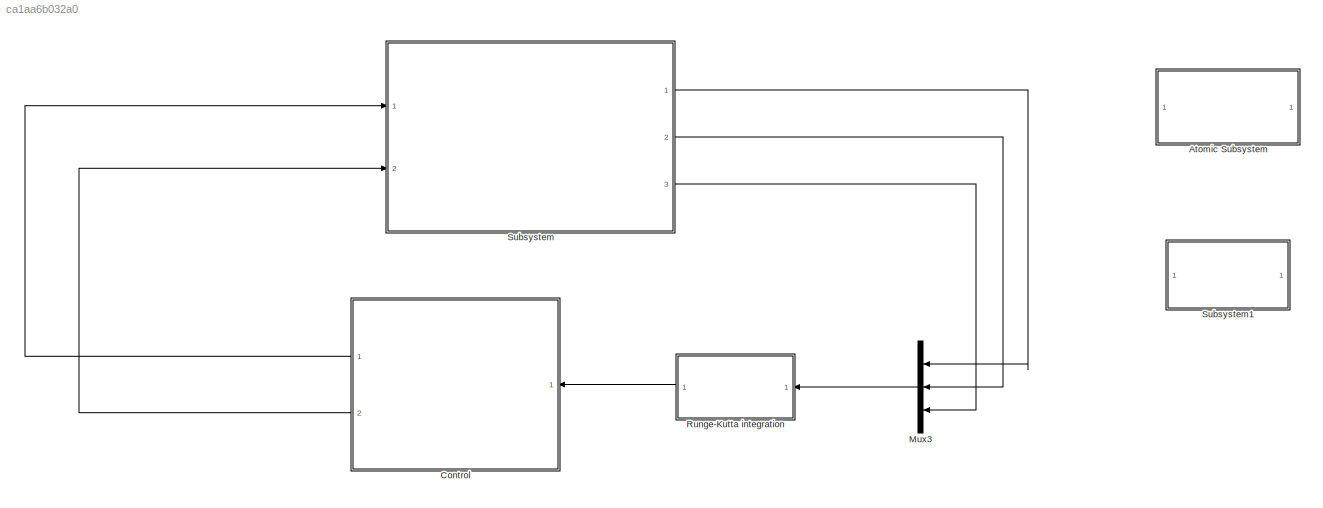
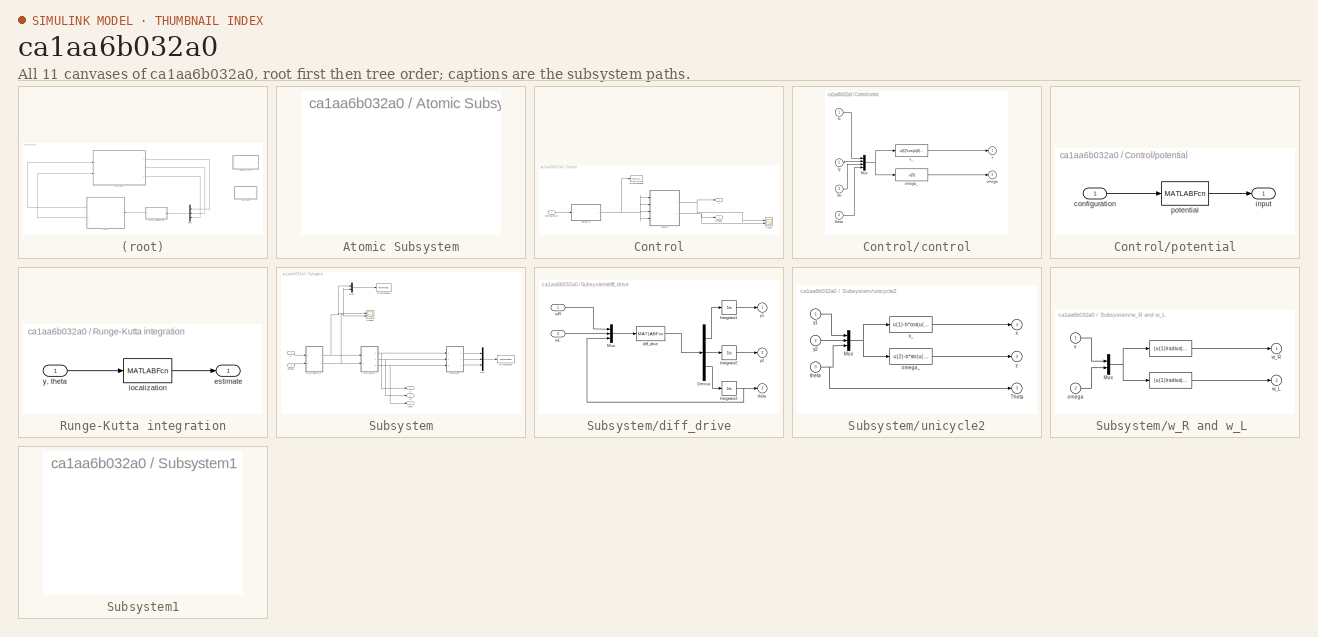
[diagram: thumbnail index - all 11 canvases of the model, root first then tree order]
MODEL slx_ca1aa6b032a0
KIND model
CONFIG AbsTol = auto
CONFIG EnableMultiTasking = on
CONFIG FixedStep = auto
CONFIG MaxStep = 0.01
CONFIG MinStep = auto
CONFIG RelTol = 1e-3
CONFIG SampleTimeConstraint = Unconstrained
CONFIG Solver = ode45
CONFIG SolverName = ode45
CONFIG StartTime = 0.0
CONFIG StopTime = T
BLOCK [SubSystem] Atomic Subsystem
  OpenFcn = init
  Ports = []
  RequestExecContextInheritance = off
  TreatAsAtomicUnit = on
BLOCK [SubSystem] Control
  Ports = [1, 2]
  RequestExecContextInheritance = off
BLOCK [Scope] Control/Scope
  Floating = off
  NumInputPorts = 2
  Ports = [2]
  ScopeSpecificationString = Simulink.scopes.TimeScopeBlockCfg('CurrentConfiguration', extmgr.ConfigurationSet(extmgr.Configuration('Core','General UI',true),extmgr.Configuration('Core','Source UI',true),extmgr.Configuration('Sources','WiredSimulink',true,'DataLoggingVariableName','ScopeData1'),extmgr.Configuration('Visuals','Time Domain',true,'SerializedDisplays',{struct('MinYLimReal','-3.32655','MaxYLimReal','6.4655','YLabe...<+1405ch>
BLOCK [ToWorkspace] Control/To Workspace2
  MaxDataPoints = inf
  Ports = [1]
  SampleTime = -1
  SaveFormat = Structure With Time
  VariableName = inputs
BLOCK [Inport] Control/configuration
  IconDisplay = Port number
BLOCK [SubSystem] Control/control
  Ports = [4, 2]
  RequestExecContextInheritance = off
BLOCK [Mux] Control/control/Mux
  DisplayOption = bar
  Ports = [4, 1]
BLOCK [Inport] Control/control/fth
  IconDisplay = Port number
  Port = 3
BLOCK [Inport] Control/control/fx
  IconDisplay = Port number
BLOCK [Inport] Control/control/fy
  IconDisplay = Port number
  Port = 2
BLOCK [Outport] Control/control/omega
  IconDisplay = Port number
  Port = 2
  VectorParamsAs1DForOutWhenUnconnected = off
BLOCK [Fcn] Control/control/omega_
  Expr = u(3)
BLOCK [Inport] Control/control/theta
  IconDisplay = Port number
  Port = 4
BLOCK [Outport] Control/control/v
  IconDisplay = Port number
  VectorParamsAs1DForOutWhenUnconnected = off
BLOCK [Fcn] Control/control/v_
  Expr = u(1)*cos(u(4))+u(2)*sin(u(4))
BLOCK [Outport] Control/omega
  IconDisplay = Port number
  Port = 2
BLOCK [SubSystem] Control/potential
  Ports = [1, 1]
  RequestExecContextInheritance = off
BLOCK [Inport] Control/potential/configuration
  IconDisplay = Port number
BLOCK [Outport] Control/potential/input
  IconDisplay = Port number
  VectorParamsAs1DForOutWhenUnconnected = off
BLOCK [MATLABFcn] Control/potential/potential
  Description = cartesian regulator
  MATLABFcn = potential(u)
  Output1D = off
  Ports = [1, 1]
  Tag = {'prova'}
BLOCK [Outport] Control/v
  IconDisplay = Port number
BLOCK [Mux] Mux3
  DisplayOption = bar
  Inputs = 3
  Ports = [3, 1]
BLOCK [SubSystem] Runge-Kutta integration
  Ports = [1, 1]
  RequestExecContextInheritance = off
BLOCK [Outport] Runge-Kutta integration/estimate 
  IconDisplay = Port number
  VectorParamsAs1DForOutWhenUnconnected = off
BLOCK [MATLABFcn] Runge-Kutta integration/localization
  Description = cartesian regulator
  MATLABFcn = localization(u)
  Output1D = off
  Ports = [1, 1]
  Tag = {'prova'}
BLOCK [Inport] Runge-Kutta integration/y, theta
  IconDisplay = Port number
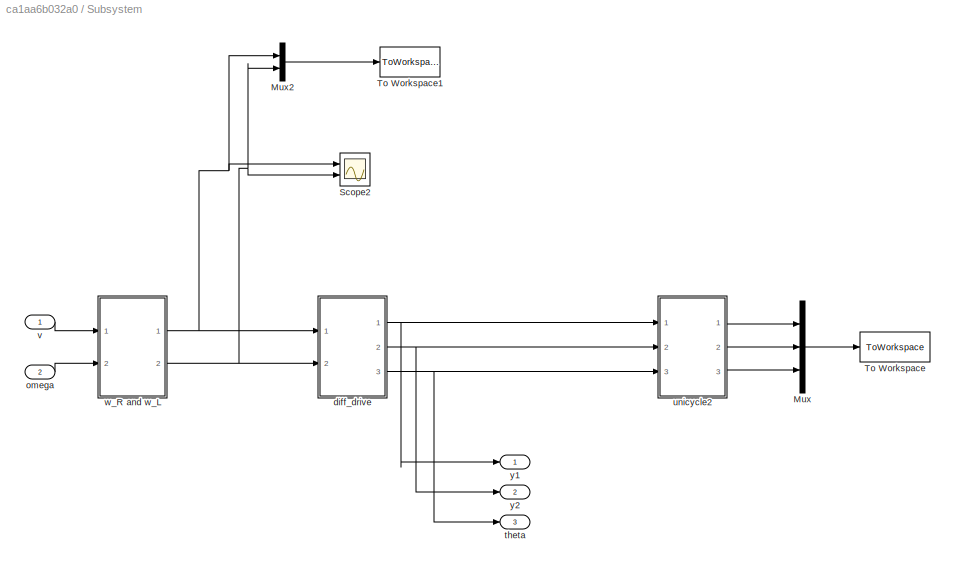
BLOCK [SubSystem] Subsystem
  Ports = [2, 3]
  RequestExecContextInheritance = off
BLOCK [Mux] Subsystem/Mux
  DisplayOption = bar
  Inputs = 3
  Ports = [3, 1]
BLOCK [Mux] Subsystem/Mux2
  DisplayOption = bar
  Inputs = 2
  Ports = [2, 1]
BLOCK [Scope] Subsystem/Scope2
  Floating = off
  NumInputPorts = 2
  Ports = [2]
  ScopeSpecificationString = Simulink.scopes.TimeScopeBlockCfg('CurrentConfiguration', extmgr.ConfigurationSet(extmgr.Configuration('Core','General UI',true),extmgr.Configuration('Core','Source UI',true),extmgr.Configuration('Sources','WiredSimulink',true,'DataLoggingVariableName','ScopeData1'),extmgr.Configuration('Visuals','Time Domain',true,'SerializedDisplays',{struct('MinYLimReal','0.73437','MaxYLimReal','6.70702','YLabe...<+1462ch>
BLOCK [ToWorkspace] Subsystem/To Workspace
  MaxDataPoints = inf
  Ports = [1]
  SampleTime = -1
  SaveFormat = Structure With Time
  VariableName = configuration
BLOCK [ToWorkspace] Subsystem/To Workspace1
  FixptAsFi = on
  MaxDataPoints = inf
  Ports = [1]
  SampleTime = -1
  SaveFormat = Structure With Time
  VariableName = omegaRL
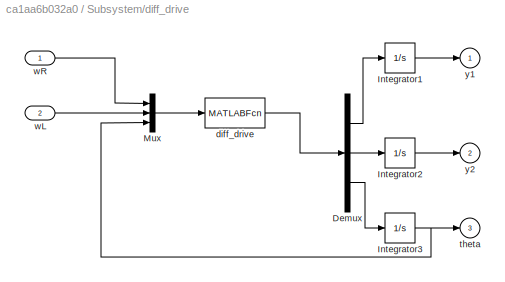
BLOCK [SubSystem] Subsystem/diff_drive
  Ports = [2, 3]
  RequestExecContextInheritance = off
BLOCK [Demux] Subsystem/diff_drive/Demux
  DisplayOption = bar
  Outputs = 3
  Ports = [1, 3]
BLOCK [Integrator] Subsystem/diff_drive/Integrator1
  InitialCondition = x_0+b*cos(theta_0)
  Ports = [1, 1]
BLOCK [Integrator] Subsystem/diff_drive/Integrator2
  InitialCondition = y_0+b*sin(theta_0)
  Ports = [1, 1]
BLOCK [Integrator] Subsystem/diff_drive/Integrator3
  InitialCondition = theta_0
  Ports = [1, 1]
BLOCK [Mux] Subsystem/diff_drive/Mux
  DisplayOption = bar
  Inputs = 3
  Ports = [3, 1]
BLOCK [MATLABFcn] Subsystem/diff_drive/diff_drive
  Description = cartesian regulator
  MATLABFcn = diff_drive(u)
  Output1D = off
  Ports = [1, 1]
  Tag = {'prova'}
BLOCK [Outport] Subsystem/diff_drive/theta
  IconDisplay = Port number
  Port = 3
  VectorParamsAs1DForOutWhenUnconnected = off
BLOCK [Inport] Subsystem/diff_drive/wL
  IconDisplay = Port number
  Port = 2
BLOCK [Inport] Subsystem/diff_drive/wR
  IconDisplay = Port number
BLOCK [Outport] Subsystem/diff_drive/y1
  IconDisplay = Port number
  VectorParamsAs1DForOutWhenUnconnected = off
BLOCK [Outport] Subsystem/diff_drive/y2
  IconDisplay = Port number
  Port = 2
  VectorParamsAs1DForOutWhenUnconnected = off
BLOCK [Inport] Subsystem/omega
  IconDisplay = Port number
  Port = 2
BLOCK [Outport] Subsystem/theta
  IconDisplay = Port number
  Port = 3
BLOCK [SubSystem] Subsystem/unicycle2
  Ports = [3, 3]
  RequestExecContextInheritance = off
BLOCK [Mux] Subsystem/unicycle2/Mux
  DisplayOption = bar
  Inputs = 3
  Ports = [3, 1]
BLOCK [Outport] Subsystem/unicycle2/Theta 
  IconDisplay = Port number
  Port = 3
  VectorParamsAs1DForOutWhenUnconnected = off
BLOCK [Fcn] Subsystem/unicycle2/omega_
  Expr = u(2)-b*sin(u(3))
BLOCK [Inport] Subsystem/unicycle2/theta
  IconDisplay = Port number
  Port = 3
BLOCK [Fcn] Subsystem/unicycle2/v_
  Expr = u(1)-b*cos(u(3))
BLOCK [Outport] Subsystem/unicycle2/x
  IconDisplay = Port number
  VectorParamsAs1DForOutWhenUnconnected = off
BLOCK [Outport] Subsystem/unicycle2/y
  IconDisplay = Port number
  Port = 2
  VectorParamsAs1DForOutWhenUnconnected = off
BLOCK [Inport] Subsystem/unicycle2/y1
  IconDisplay = Port number
BLOCK [Inport] Subsystem/unicycle2/y2
  IconDisplay = Port number
  Port = 2
BLOCK [Inport] Subsystem/v
  IconDisplay = Port number
BLOCK [SubSystem] Subsystem/w_R and w_L 
  Ports = [2, 2]
  RequestExecContextInheritance = off
BLOCK [Fcn] Subsystem/w_R and w_L / 
  Expr = (u(1)/radius)-(distc/(2*radius))*u(2)
BLOCK [Mux] Subsystem/w_R and w_L /Mux
  DisplayOption = bar
  Inputs = 2
  Ports = [2, 1]
BLOCK [Inport] Subsystem/w_R and w_L /omega
  IconDisplay = Port number
  Port = 2
BLOCK [Inport] Subsystem/w_R and w_L /v
  IconDisplay = Port number
BLOCK [Outport] Subsystem/w_R and w_L /w_L
  IconDisplay = Port number
  Port = 2
  VectorParamsAs1DForOutWhenUnconnected = off
BLOCK [Outport] Subsystem/w_R and w_L /w_R
  IconDisplay = Port number
  VectorParamsAs1DForOutWhenUnconnected = off
BLOCK [Outport] Subsystem/y1
  IconDisplay = Port number
BLOCK [Outport] Subsystem/y2
  IconDisplay = Port number
  Port = 2
BLOCK [SubSystem] Subsystem1
  OpenFcn = plots
  Ports = []
  RequestExecContextInheritance = off
  ShowPortLabels = none
LINE Control/configuration:1 -> Control/potential:1
NET Control/control/Mux:1 -> Control/control/omega_:1, Control/control/v_:1
LINE Control/control/fth:1 -> Control/control/Mux:3
LINE Control/control/fx:1 -> Control/control/Mux:1
LINE Control/control/fy:1 -> Control/control/Mux:2
LINE Control/control/omega_:1 -> Control/control/omega:1
LINE Control/control/theta:1 -> Control/control/Mux:4
LINE Control/control/v_:1 -> Control/control/v:1
NET Control/control:1 -> Control/Scope:1, Control/v:1
NET Control/control:2 -> Control/Scope:2, Control/omega:1
LINE Control/potential/configuration:1 -> Control/potential/potential:1
LINE Control/potential/potential:1 -> Control/potential/input:1
NET Control/potential:1 -> Control/To Workspace2:1, Control/control:1, Control/control:2, Control/control:3, Control/control:4
LINE Control:1 -> Subsystem:1
LINE Control:2 -> Subsystem:2
LINE Mux3:1 -> Runge-Kutta integration:1
LINE Runge-Kutta integration/localization:1 -> Runge-Kutta integration/estimate :1
LINE Runge-Kutta integration/y, theta:1 -> Runge-Kutta integration/localization:1
LINE Runge-Kutta integration:1 -> Control:1
LINE Subsystem/Mux2:1 -> Subsystem/To Workspace1:1
LINE Subsystem/Mux:1 -> Subsystem/To Workspace:1
LINE Subsystem/diff_drive/Demux:1 -> Subsystem/diff_drive/Integrator1:1
LINE Subsystem/diff_drive/Demux:2 -> Subsystem/diff_drive/Integrator2:1
LINE Subsystem/diff_drive/Demux:3 -> Subsystem/diff_drive/Integrator3:1
LINE Subsystem/diff_drive/Integrator1:1 -> Subsystem/diff_drive/y1:1
LINE Subsystem/diff_drive/Integrator2:1 -> Subsystem/diff_drive/y2:1
NET Subsystem/diff_drive/Integrator3:1 -> Subsystem/diff_drive/Mux:3, Subsystem/diff_drive/theta:1
LINE Subsystem/diff_drive/Mux:1 -> Subsystem/diff_drive/diff_drive:1
LINE Subsystem/diff_drive/diff_drive:1 -> Subsystem/diff_drive/Demux:1
LINE Subsystem/diff_drive/wL:1 -> Subsystem/diff_drive/Mux:2
LINE Subsystem/diff_drive/wR:1 -> Subsystem/diff_drive/Mux:1
NET Subsystem/diff_drive:1 -> Subsystem/unicycle2:1, Subsystem/y1:1
NET Subsystem/diff_drive:2 -> Subsystem/unicycle2:2, Subsystem/y2:1
NET Subsystem/diff_drive:3 -> Subsystem/theta:1, Subsystem/unicycle2:3
LINE Subsystem/omega:1 -> Subsystem/w_R and w_L :2
NET Subsystem/unicycle2/Mux:1 -> Subsystem/unicycle2/omega_:1, Subsystem/unicycle2/v_:1
LINE Subsystem/unicycle2/omega_:1 -> Subsystem/unicycle2/y:1
NET Subsystem/unicycle2/theta:1 -> Subsystem/unicycle2/Mux:3, Subsystem/unicycle2/Theta :1
LINE Subsystem/unicycle2/v_:1 -> Subsystem/unicycle2/x:1
LINE Subsystem/unicycle2/y1:1 -> Subsystem/unicycle2/Mux:1
LINE Subsystem/unicycle2/y2:1 -> Subsystem/unicycle2/Mux:2
LINE Subsystem/unicycle2:1 -> Subsystem/Mux:1
LINE Subsystem/unicycle2:2 -> Subsystem/Mux:2
LINE Subsystem/unicycle2:3 -> Subsystem/Mux:3
LINE Subsystem/v:1 -> Subsystem/w_R and w_L :1
NET Subsystem/w_R and w_L / :1 -> Subsystem/w_R and w_L /w_L:1, Subsystem/w_R and w_L /w_R:1
LINE Subsystem/w_R and w_L /Mux:1 -> Subsystem/w_R and w_L / :1
LINE Subsystem/w_R and w_L /omega:1 -> Subsystem/w_R and w_L /Mux:2
LINE Subsystem/w_R and w_L /v:1 -> Subsystem/w_R and w_L /Mux:1
NET Subsystem/w_R and w_L :1 -> Subsystem/Mux2:1, Subsystem/Scope2:1, Subsystem/diff_drive:1
NET Subsystem/w_R and w_L :2 -> Subsystem/Mux2:2, Subsystem/Scope2:2, Subsystem/diff_drive:2
LINE Subsystem:1 -> Mux3:1
LINE Subsystem:2 -> Mux3:2
LINE Subsystem:3 -> Mux3:3
note: NET lines group one-source signal fan-out (src -> all destinations, sorted); 1:1 wires keep LINE
